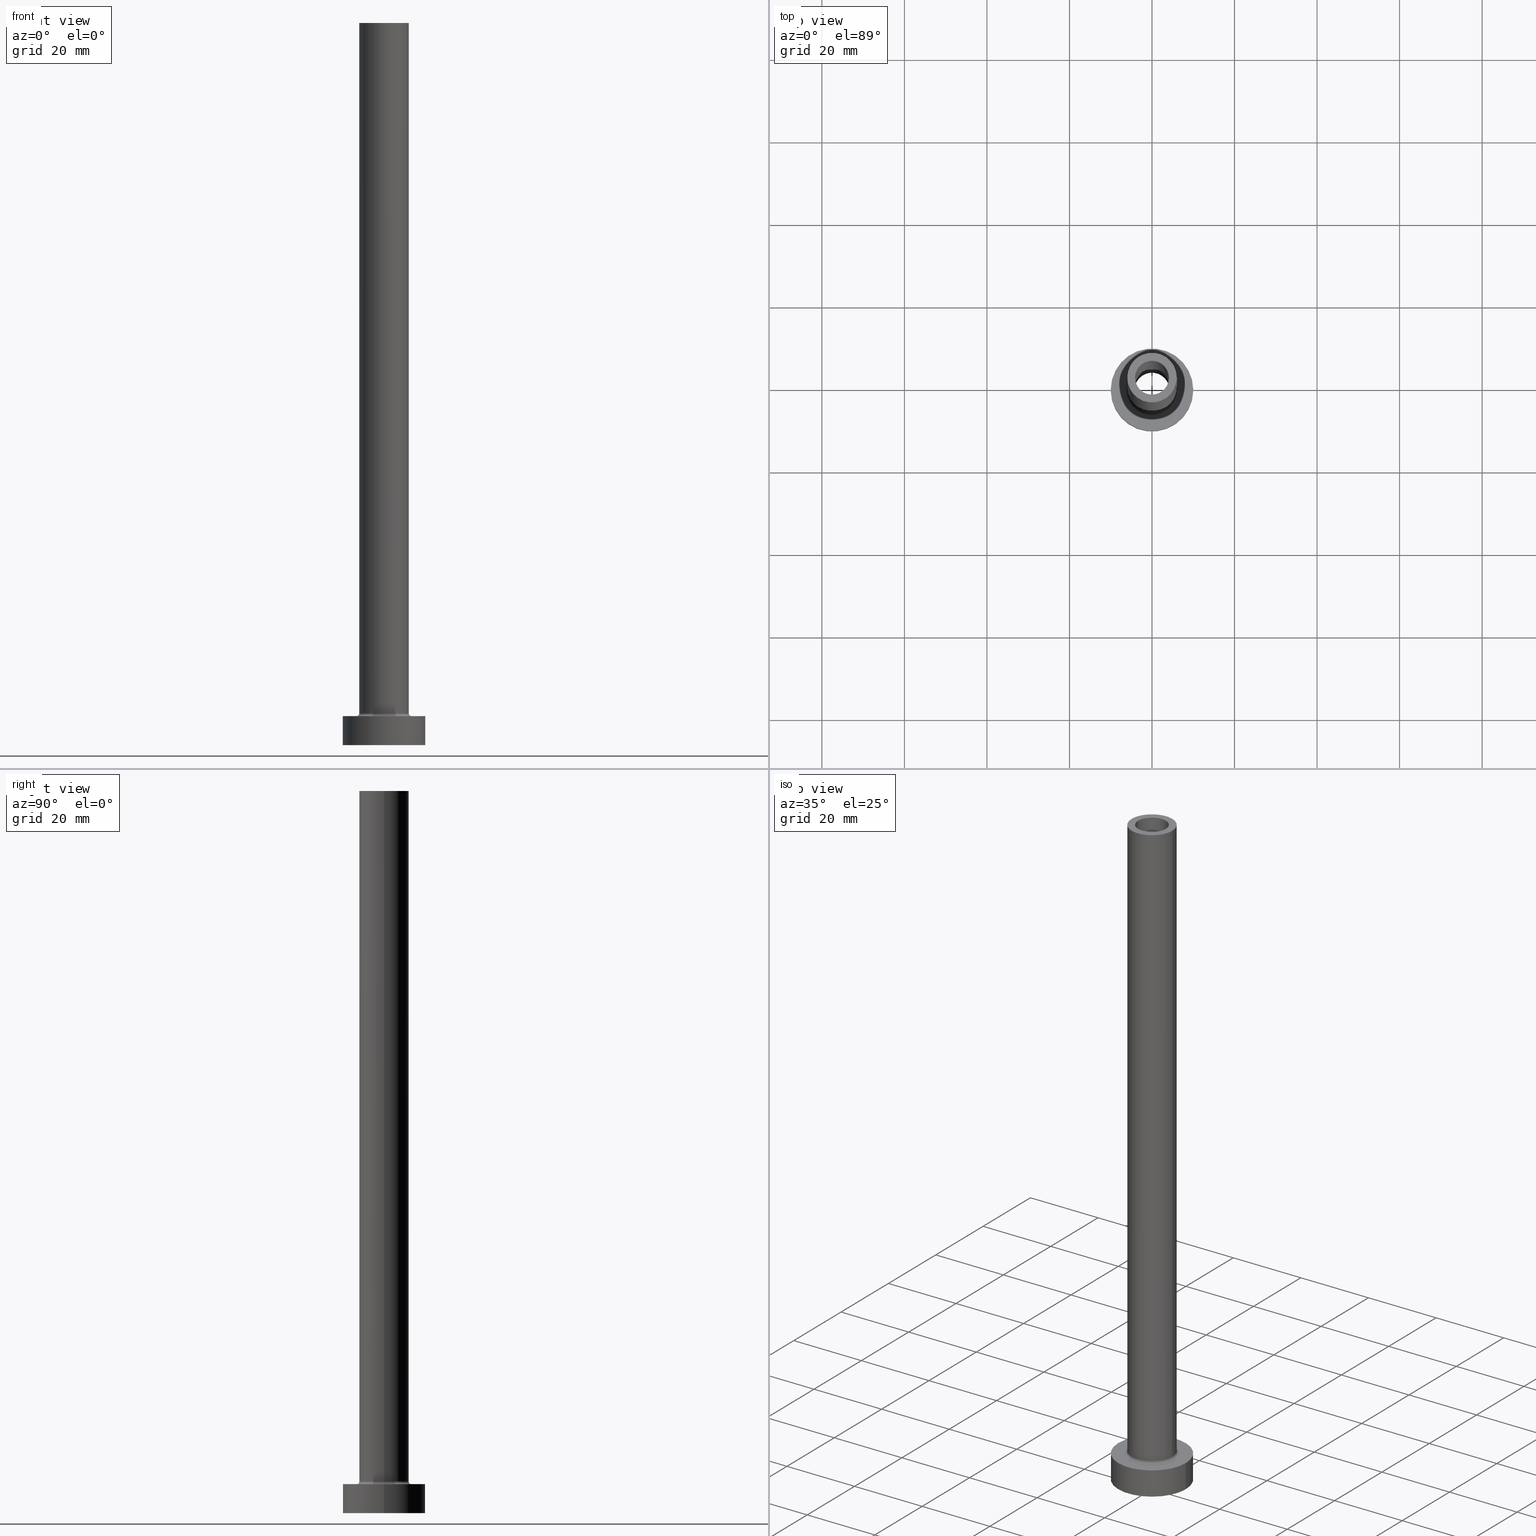
[diagram: canonical four-view strip — front | top / right | iso, engineering-drawing reading convention]
A machine part, canonical four-view strip (front | top / right | iso — engineering-drawing reading convention). The complete STEP part file that produces these views, byte-faithful:
ISO-10303-21;
HEADER;
FILE_DESCRIPTION (( 'STEP AP203' ),
    '1' );
FILE_NAME ('2c22.STEP',
    '2023-02-13T07:41:09',
    ( '' ),
    ( '' ),
    'SwSTEP 2.0',
    'SolidWorks 2019',
    '' );
FILE_SCHEMA (( 'CONFIG_CONTROL_DESIGN' ));
ENDSEC;

DATA;
#1 = VERTEX_POINT ( 'NONE', #206 ) ;
#2 = VERTEX_POINT ( 'NONE', #283 ) ;
#3 = CIRCLE ( 'NONE', #172, 4.099999999999999645 ) ;
#4 = VERTEX_POINT ( 'NONE', #258 ) ;
#5 = ORIENTED_EDGE ( 'NONE', *, *, #194, .F. ) ;
#6 = ADVANCED_FACE ( 'NONE', ( #435 ), #281, .T. ) ;
#7 = PRODUCT_RELATED_PRODUCT_CATEGORY ( 'detail', '', ( #79 ) ) ;
#8 = DIRECTION ( 'NONE',  ( 1.000000000000000000, 0.000000000000000000, 0.000000000000000000 ) ) ;
#9 = VECTOR ( 'NONE', #100, 1000.000000000000000 ) ;
#10 = FACE_BOUND ( 'NONE', #198, .T. ) ;
#11 = PERSON_AND_ORGANIZATION_ROLE ( 'design_supplier' ) ;
#12 = DIRECTION ( 'NONE',  ( 1.000000000000000000, 0.000000000000000000, 0.000000000000000000 ) ) ;
#13 = ADVANCED_FACE ( 'NONE', ( #10, #401 ), #180, .T. ) ;
#14 = CARTESIAN_POINT ( 'NONE',  ( 4.250000000000000000, 5.204748896376250699E-16, 130.0000000000000000 ) ) ;
#15 = CARTESIAN_POINT ( 'NONE',  ( 0.000000000000000000, 0.000000000000000000, 7.700000000000012612 ) ) ;
#16 = CIRCLE ( 'NONE', #165, 10.00000000000000000 ) ;
#17 = DATE_AND_TIME ( #363, #238 ) ;
#18 = DIRECTION ( 'NONE',  ( 1.000000000000000000, 0.000000000000000000, 0.000000000000000000 ) ) ;
#19 = CARTESIAN_POINT ( 'NONE',  ( -4.099999999999999645, 0.000000000000000000, 175.0000000000000284 ) ) ;
#20 = CIRCLE ( 'NONE', #39, 0.7000000000000000666 ) ;
#21 = DIRECTION ( 'NONE',  ( -0.000000000000000000, -0.000000000000000000, -1.000000000000000000 ) ) ;
#22 = CIRCLE ( 'NONE', #387, 4.099999999999999645 ) ;
#23 = CC_DESIGN_PERSON_AND_ORGANIZATION_ASSIGNMENT ( #176, #11, ( #94 ) ) ;
#24 = APPROVAL_PERSON_ORGANIZATION ( #32, #124, #236 ) ;
#25 = PERSON_AND_ORGANIZATION ( #232, #211 ) ;
#26 = APPLICATION_CONTEXT ( 'configuration controlled 3d designs of mechanical parts and assemblies' ) ;
#27 = FACE_OUTER_BOUND ( 'NONE', #306, .T. ) ;
#28 = ADVANCED_FACE ( 'NONE', ( #212 ), #50, .F. ) ;
#29 = APPROVAL_DATE_TIME ( #191, #249 ) ;
#30 = ORIENTED_EDGE ( 'NONE', *, *, #277, .F. ) ;
#31 = EDGE_CURVE ( 'NONE', #162, #1, #357, .T. ) ;
#32 = PERSON_AND_ORGANIZATION ( #232, #211 ) ;
#33 = ORIENTED_EDGE ( 'NONE', *, *, #188, .T. ) ;
#34 = ORIENTED_EDGE ( 'NONE', *, *, #456, .F. ) ;
#35 = ORIENTED_EDGE ( 'NONE', *, *, #31, .T. ) ;
#36 = CARTESIAN_POINT ( 'NONE',  ( -4.250000000000000000, 0.000000000000000000, 142.0208152801712913 ) ) ;
#37 = ORIENTED_EDGE ( 'NONE', *, *, #234, .T. ) ;
#38 = EDGE_LOOP ( 'NONE', ( #63, #374, #346, #98 ) ) ;
#39 = AXIS2_PLACEMENT_3D ( 'NONE', #226, #372, #219 ) ;
#40 = EDGE_LOOP ( 'NONE', ( #131, #461 ) ) ;
#41 = CARTESIAN_POINT ( 'NONE',  ( 0.000000000000000000, 0.000000000000000000, 0.000000000000000000 ) ) ;
#42 = CYLINDRICAL_SURFACE ( 'NONE', #207, 4.099999999999999645 ) ;
#43 = CARTESIAN_POINT ( 'NONE',  ( 0.000000000000000000, 0.000000000000000000, 7.000000000000000000 ) ) ;
#44 = ADVANCED_FACE ( 'NONE', ( #364 ), #149, .F. ) ;
#45 = CARTESIAN_POINT ( 'NONE',  ( 0.000000000000000000, 0.000000000000000000, 175.0000000000000284 ) ) ;
#46 = VECTOR ( 'NONE', #21, 1000.000000000000000 ) ;
#47 = CARTESIAN_POINT ( 'NONE',  ( 6.000000000000000888, 7.347880794884119736E-16, 175.0000000000000284 ) ) ;
#48 = VECTOR ( 'NONE', #78, 1000.000000000000000 ) ;
#49 = LINE ( 'NONE', #316, #115 ) ;
#50 = TOROIDAL_SURFACE ( 'NONE', #220, 6.700000000000001066, 0.6999999999999999556 ) ;
#51 = CARTESIAN_POINT ( 'NONE',  ( -6.000000000000000888, 0.000000000000000000, 175.0000000000000284 ) ) ;
#52 = AXIS2_PLACEMENT_3D ( 'NONE', #330, #368, #126 ) ;
#53 = CIRCLE ( 'NONE', #130, 4.099999999999999645 ) ;
#54 = FACE_BOUND ( 'NONE', #169, .T. ) ;
#55 = COORDINATED_UNIVERSAL_TIME_OFFSET ( 1, 0, .AHEAD. ) ;
#56 = EDGE_CURVE ( 'NONE', #196, #382, #49, .T. ) ;
#57 = LINE ( 'NONE', #192, #352 ) ;
#58 = LINE ( 'NONE', #36, #9 ) ;
#59 = EDGE_CURVE ( 'NONE', #2, #68, #157, .T. ) ;
#60 = PERSON_AND_ORGANIZATION ( #232, #211 ) ;
#61 = ORIENTED_EDGE ( 'NONE', *, *, #141, .T. ) ;
#62 = AXIS2_PLACEMENT_3D ( 'NONE', #359, #118, #393 ) ;
#63 = ORIENTED_EDGE ( 'NONE', *, *, #384, .F. ) ;
#64 = EDGE_LOOP ( 'NONE', ( #173, #422, #239, #34 ) ) ;
#65 = ORIENTED_EDGE ( 'NONE', *, *, #194, .T. ) ;
#66 = VERTEX_POINT ( 'NONE', #216 ) ;
#67 = AXIS2_PLACEMENT_3D ( 'NONE', #427, #114, #8 ) ;
#68 = VERTEX_POINT ( 'NONE', #120 ) ;
#69 = EDGE_CURVE ( 'NONE', #68, #2, #319, .T. ) ;
#70 = CC_DESIGN_PERSON_AND_ORGANIZATION_ASSIGNMENT ( #356, #185, ( #94 ) ) ;
#71 = EDGE_LOOP ( 'NONE', ( #272, #135, #417, #33 ) ) ;
#72 = DIRECTION ( 'NONE',  ( 1.000000000000000000, 0.000000000000000000, 0.000000000000000000 ) ) ;
#73 = ORIENTED_EDGE ( 'NONE', *, *, #188, .F. ) ;
#74 = DIRECTION ( 'NONE',  ( 0.000000000000000000, 0.000000000000000000, 1.000000000000000000 ) ) ;
#75 = AXIS2_PLACEMENT_3D ( 'NONE', #139, #378, #288 ) ;
#76 = DIRECTION ( 'NONE',  ( 1.000000000000000000, 0.000000000000000000, 0.000000000000000000 ) ) ;
#77 = EDGE_CURVE ( 'NONE', #196, #274, #443, .T. ) ;
#78 = DIRECTION ( 'NONE',  ( -0.000000000000000000, -0.000000000000000000, -1.000000000000000000 ) ) ;
#79 = PRODUCT ( '2c22', '2c22', '', ( #347 ) ) ;
#80 = DIRECTION ( 'NONE',  ( -1.000000000000000000, 0.000000000000000000, 0.000000000000000000 ) ) ;
#81 = CARTESIAN_POINT ( 'NONE',  ( 0.000000000000000000, 0.000000000000000000, 7.700000000000012612 ) ) ;
#82 = DIRECTION ( 'NONE',  ( 0.000000000000000000, 0.000000000000000000, 1.000000000000000000 ) ) ;
#83 = DIRECTION ( 'NONE',  ( 0.000000000000000000, 0.000000000000000000, 1.000000000000000000 ) ) ;
#84 = COORDINATED_UNIVERSAL_TIME_OFFSET ( 1, 0, .AHEAD. ) ;
#85 = DIRECTION ( 'NONE',  ( -1.000000000000000000, 0.000000000000000000, 0.000000000000000000 ) ) ;
#86 = EDGE_CURVE ( 'NONE', #453, #230, #133, .T. ) ;
#87 = CARTESIAN_POINT ( 'NONE',  ( 0.000000000000000000, 0.000000000000000000, 175.0000000000000284 ) ) ;
#88 = CIRCLE ( 'NONE', #287, 6.000000000000000888 ) ;
#89 = CYLINDRICAL_SURFACE ( 'NONE', #52, 4.250000000000000000 ) ;
#90 = FACE_OUTER_BOUND ( 'NONE', #40, .T. ) ;
#91 = PERSON_AND_ORGANIZATION ( #232, #211 ) ;
#92 = ADVANCED_FACE ( 'NONE', ( #113 ), #42, .F. ) ;
#93 = CARTESIAN_POINT ( 'NONE',  ( -6.000000000000000888, 0.000000000000000000, 175.0000000000000284 ) ) ;
#94 = PRODUCT_DEFINITION_FORMATION_WITH_SPECIFIED_SOURCE ( 'LIBOVOLN�', '', #79, .NOT_KNOWN. ) ;
#95 = CYLINDRICAL_SURFACE ( 'NONE', #205, 4.250000000000000000 ) ;
#96 = CARTESIAN_POINT ( 'NONE',  ( 0.000000000000000000, 0.000000000000000000, 130.0000000000000000 ) ) ;
#97 = ORIENTED_EDGE ( 'NONE', *, *, #302, .F. ) ;
#98 = ORIENTED_EDGE ( 'NONE', *, *, #59, .F. ) ;
#99 = ORIENTED_EDGE ( 'NONE', *, *, #234, .F. ) ;
#100 = DIRECTION ( 'NONE',  ( 0.000000000000000000, 0.000000000000000000, -1.000000000000000000 ) ) ;
#101 = EDGE_LOOP ( 'NONE', ( #137, #5 ) ) ;
#102 = EDGE_LOOP ( 'NONE', ( #312, #344, #428, #383 ) ) ;
#103 = EDGE_CURVE ( 'NONE', #109, #386, #355, .T. ) ;
#104 = PERSON_AND_ORGANIZATION ( #232, #211 ) ;
#105 = APPROVAL ( #324, 'NEUR�EN�' ) ;
#106 = ORIENTED_EDGE ( 'NONE', *, *, #56, .F. ) ;
#107 = CARTESIAN_POINT ( 'NONE',  ( -4.099999999999999645, 0.000000000000000000, 175.0000000000000284 ) ) ;
#108 = AXIS2_PLACEMENT_3D ( 'NONE', #43, #111, #323 ) ;
#109 = VERTEX_POINT ( 'NONE', #47 ) ;
#110 = DIRECTION ( 'NONE',  ( -1.000000000000000000, 0.000000000000000000, 0.000000000000000000 ) ) ;
#111 = DIRECTION ( 'NONE',  ( -0.000000000000000000, -0.000000000000000000, -1.000000000000000000 ) ) ;
#112 = CIRCLE ( 'NONE', #67, 10.00000000000000000 ) ;
#113 = FACE_OUTER_BOUND ( 'NONE', #171, .T. ) ;
#114 = DIRECTION ( 'NONE',  ( 0.000000000000000000, 0.000000000000000000, 1.000000000000000000 ) ) ;
#115 = VECTOR ( 'NONE', #145, 1000.000000000000000 ) ;
#116 = COORDINATED_UNIVERSAL_TIME_OFFSET ( 1, 0, .AHEAD. ) ;
#117 = ORIENTED_EDGE ( 'NONE', *, *, #151, .T. ) ;
#118 = DIRECTION ( 'NONE',  ( 0.000000000000000000, 0.000000000000000000, 1.000000000000000000 ) ) ;
#119 = EDGE_CURVE ( 'NONE', #166, #390, #16, .T. ) ;
#120 = CARTESIAN_POINT ( 'NONE',  ( 6.700000000000001066, 0.000000000000000000, 7.000000000000006217 ) ) ;
#121 = CARTESIAN_POINT ( 'NONE',  ( 0.000000000000000000, 0.000000000000000000, 142.0208152801712913 ) ) ;
#122 = DATE_TIME_ROLE ( 'classification_date' ) ;
#123 = LINE ( 'NONE', #93, #46 ) ;
#124 = APPROVAL ( #418, 'NEUR�EN�' ) ;
#125 = CARTESIAN_POINT ( 'NONE',  ( 0.000000000000000000, 0.000000000000000000, 130.0000000000000000 ) ) ;
#126 = DIRECTION ( 'NONE',  ( -1.000000000000000000, 0.000000000000000000, 0.000000000000000000 ) ) ;
#127 = CARTESIAN_POINT ( 'NONE',  ( 0.000000000000000000, 0.000000000000000000, 175.0000000000000284 ) ) ;
#128 = ORIENTED_EDGE ( 'NONE', *, *, #277, .T. ) ;
#129 = DIRECTION ( 'NONE',  ( 0.000000000000000000, 0.000000000000000000, 1.000000000000000000 ) ) ;
#130 = AXIS2_PLACEMENT_3D ( 'NONE', #400, #83, #217 ) ;
#131 = ORIENTED_EDGE ( 'NONE', *, *, #399, .T. ) ;
#132 = EDGE_LOOP ( 'NONE', ( #117, #161, #30, #351 ) ) ;
#133 = CIRCLE ( 'NONE', #334, 6.000000000000000888 ) ;
#134 = EDGE_CURVE ( 'NONE', #388, #1, #22, .T. ) ;
#135 = ORIENTED_EDGE ( 'NONE', *, *, #348, .F. ) ;
#136 = UNCERTAINTY_MEASURE_WITH_UNIT (LENGTH_MEASURE( 1.000000000000000082E-05 ), #450, 'distance_accuracy_value', 'NONE');
#137 = ORIENTED_EDGE ( 'NONE', *, *, #141, .F. ) ;
#138 = ORIENTED_EDGE ( 'NONE', *, *, #134, .F. ) ;
#139 = CARTESIAN_POINT ( 'NONE',  ( 0.000000000000000000, 0.000000000000000000, 0.000000000000000000 ) ) ;
#140 = EDGE_LOOP ( 'NONE', ( #379, #342, #65, #246 ) ) ;
#141 = EDGE_CURVE ( 'NONE', #203, #382, #457, .T. ) ;
#142 = AXIS2_PLACEMENT_3D ( 'NONE', #127, #345, #197 ) ;
#143 = DIRECTION ( 'NONE',  ( 1.000000000000000000, 0.000000000000000000, 0.000000000000000000 ) ) ;
#144 = VECTOR ( 'NONE', #177, 1000.000000000000000 ) ;
#145 = DIRECTION ( 'NONE',  ( 0.000000000000000000, 0.000000000000000000, -1.000000000000000000 ) ) ;
#146 = SECURITY_CLASSIFICATION_LEVEL ( 'unclassified' ) ;
#147 = CARTESIAN_POINT ( 'NONE',  ( 0.000000000000000000, 0.000000000000000000, 7.700000000000012612 ) ) ;
#148 = CARTESIAN_POINT ( 'NONE',  ( 6.000000000000000888, 7.347880794884119736E-16, 7.700000000000012612 ) ) ;
#149 = CYLINDRICAL_SURFACE ( 'NONE', #310, 4.099999999999999645 ) ;
#150 = CARTESIAN_POINT ( 'NONE',  ( 0.000000000000000000, 0.000000000000000000, 130.0000000000000000 ) ) ;
#151 = EDGE_CURVE ( 'NONE', #162, #66, #53, .T. ) ;
#152 = CARTESIAN_POINT ( 'NONE',  ( 0.000000000000000000, 0.000000000000000000, 7.000000000000000000 ) ) ;
#153 = FACE_OUTER_BOUND ( 'NONE', #140, .T. ) ;
#154 = EDGE_CURVE ( 'NONE', #4, #166, #178, .T. ) ;
#155 = CARTESIAN_POINT ( 'NONE',  ( 0.000000000000000000, 0.000000000000000000, 7.700000000000012612 ) ) ;
#156 = CIRCLE ( 'NONE', #142, 4.099999999999999645 ) ;
#157 = CIRCLE ( 'NONE', #404, 6.700000000000001066 ) ;
#158 = SHAPE_DEFINITION_REPRESENTATION ( #385, #429 ) ;
#159 = CYLINDRICAL_SURFACE ( 'NONE', #227, 6.000000000000000888 ) ;
#160 = ADVANCED_FACE ( 'NONE', ( #326, #322 ), #204, .F. ) ;
#161 = ORIENTED_EDGE ( 'NONE', *, *, #367, .T. ) ;
#162 = VERTEX_POINT ( 'NONE', #107 ) ;
#163 = EDGE_LOOP ( 'NONE', ( #99, #308, #313, #311 ) ) ;
#164 = FACE_OUTER_BOUND ( 'NONE', #102, .T. ) ;
#165 = AXIS2_PLACEMENT_3D ( 'NONE', #184, #325, #18 ) ;
#166 = VERTEX_POINT ( 'NONE', #174 ) ;
#167 = CARTESIAN_POINT ( 'NONE',  ( 0.000000000000000000, 0.000000000000000000, 0.000000000000000000 ) ) ;
#168 = CC_DESIGN_APPROVAL ( #105, ( #94 ) ) ;
#169 = EDGE_LOOP ( 'NONE', ( #243, #304 ) ) ;
#170 = LOCAL_TIME ( 8, 41, 9.000000000000000000, #55 ) ;
#171 = EDGE_LOOP ( 'NONE', ( #424, #210, #35, #138 ) ) ;
#172 = AXIS2_PLACEMENT_3D ( 'NONE', #125, #264, #294 ) ;
#173 = ORIENTED_EDGE ( 'NONE', *, *, #86, .F. ) ;
#174 = CARTESIAN_POINT ( 'NONE',  ( 10.00000000000000000, 1.224646799147353256E-15, 0.000000000000000000 ) ) ;
#175 = EDGE_LOOP ( 'NONE', ( #73, #458 ) ) ;
#176 = PERSON_AND_ORGANIZATION ( #232, #211 ) ;
#177 = DIRECTION ( 'NONE',  ( 0.000000000000000000, 0.000000000000000000, -1.000000000000000000 ) ) ;
#178 = LINE ( 'NONE', #362, #307 ) ;
#179 = AXIS2_PLACEMENT_3D ( 'NONE', #155, #262, #444 ) ;
#180 = PLANE ( 'NONE',  #62 ) ;
#181 = FACE_OUTER_BOUND ( 'NONE', #163, .T. ) ;
#182 = CIRCLE ( 'NONE', #447, 4.250000000000000000 ) ;
#183 = PERSON_AND_ORGANIZATION_ROLE ( 'creator' ) ;
#184 = CARTESIAN_POINT ( 'NONE',  ( 0.000000000000000000, 0.000000000000000000, 0.000000000000000000 ) ) ;
#185 = PERSON_AND_ORGANIZATION_ROLE ( 'creator' ) ;
#186 = EDGE_LOOP ( 'NONE', ( #128, #349 ) ) ;
#187 = CARTESIAN_POINT ( 'NONE',  ( 4.099999999999999645, 5.021051876504147385E-16, 130.0000000000000000 ) ) ;
#188 = EDGE_CURVE ( 'NONE', #390, #166, #112, .T. ) ;
#189 = AXIS2_PLACEMENT_3D ( 'NONE', #366, #193, #337 ) ;
#190 = FACE_OUTER_BOUND ( 'NONE', #38, .T. ) ;
#191 = DATE_AND_TIME ( #369, #305 ) ;
#192 = CARTESIAN_POINT ( 'NONE',  ( 4.099999999999999645, 5.021051876504147385E-16, 175.0000000000000284 ) ) ;
#193 = DIRECTION ( 'NONE',  ( 0.000000000000000000, 0.000000000000000000, 1.000000000000000000 ) ) ;
#194 = EDGE_CURVE ( 'NONE', #382, #203, #182, .T. ) ;
#195 = CC_DESIGN_PERSON_AND_ORGANIZATION_ASSIGNMENT ( #25, #338, ( #437 ) ) ;
#196 = VERTEX_POINT ( 'NONE', #14 ) ;
#197 = DIRECTION ( 'NONE',  ( 1.000000000000000000, 0.000000000000000000, 0.000000000000000000 ) ) ;
#198 = EDGE_LOOP ( 'NONE', ( #389, #350 ) ) ;
#199 = PRODUCT_DEFINITION ( 'NEZN�M�', '', #94, #460 ) ;
#200 = CALENDAR_DATE ( 2023, 13, 2 ) ;
#201 = ORIENTED_EDGE ( 'NONE', *, *, #415, .F. ) ;
#202 = DIRECTION ( 'NONE',  ( 0.000000000000000000, 0.000000000000000000, 1.000000000000000000 ) ) ;
#203 = VERTEX_POINT ( 'NONE', #280 ) ;
#204 = PLANE ( 'NONE',  #263 ) ;
#205 = AXIS2_PLACEMENT_3D ( 'NONE', #121, #407, #221 ) ;
#206 = CARTESIAN_POINT ( 'NONE',  ( -4.099999999999999645, 0.000000000000000000, 130.0000000000000000 ) ) ;
#207 = AXIS2_PLACEMENT_3D ( 'NONE', #398, #253, #80 ) ;
#208 = LINE ( 'NONE', #394, #48 ) ;
#209 = APPROVAL_DATE_TIME ( #17, #105 ) ;
#210 = ORIENTED_EDGE ( 'NONE', *, *, #449, .T. ) ;
#211 = ORGANIZATION ( 'NEUR�EN�', 'NEUR�EN�', '' ) ;
#212 = FACE_OUTER_BOUND ( 'NONE', #64, .T. ) ;
#213 = ADVANCED_FACE ( 'NONE', ( #181 ), #252, .T. ) ;
#214 = DIRECTION ( 'NONE',  ( 0.000000000000000000, 0.000000000000000000, 1.000000000000000000 ) ) ;
#215 = DATE_TIME_ROLE ( 'creation_date' ) ;
#216 = CARTESIAN_POINT ( 'NONE',  ( 4.099999999999999645, 5.021051876504147385E-16, 175.0000000000000284 ) ) ;
#217 = DIRECTION ( 'NONE',  ( 1.000000000000000000, 0.000000000000000000, 0.000000000000000000 ) ) ;
#218 = DIRECTION ( 'NONE',  ( 0.000000000000000000, 0.000000000000000000, 1.000000000000000000 ) ) ;
#219 = DIRECTION ( 'NONE',  ( -1.000000000000000000, 1.224646799147353454E-16, 0.000000000000000000 ) ) ;
#220 = AXIS2_PLACEMENT_3D ( 'NONE', #15, #218, #76 ) ;
#221 = DIRECTION ( 'NONE',  ( -1.000000000000000000, 0.000000000000000000, 0.000000000000000000 ) ) ;
#222 = APPROVAL_ROLE ( '' ) ;
#223 = CARTESIAN_POINT ( 'NONE',  ( 0.000000000000000000, 0.000000000000000000, 7.000000000000000000 ) ) ;
#224 = COORDINATED_UNIVERSAL_TIME_OFFSET ( 1, 0, .AHEAD. ) ;
#225 = EDGE_CURVE ( 'NONE', #109, #230, #208, .T. ) ;
#226 = CARTESIAN_POINT ( 'NONE',  ( -6.700000000000001066, 8.205133554287267548E-16, 7.700000000000012612 ) ) ;
#227 = AXIS2_PLACEMENT_3D ( 'NONE', #87, #365, #296 ) ;
#228 = APPROVAL_PERSON_ORGANIZATION ( #91, #249, #222 ) ;
#229 = CARTESIAN_POINT ( 'NONE',  ( 6.700000000000001066, 0.000000000000000000, 7.700000000000012612 ) ) ;
#230 = VERTEX_POINT ( 'NONE', #148 ) ;
#231 = DIRECTION ( 'NONE',  ( 0.000000000000000000, 0.000000000000000000, 1.000000000000000000 ) ) ;
#232 = PERSON ( 'NEUR�EN�', 'NEUR�EN�', 'NEUR�EN�', ('NEUR�EN�'), ('NEUR�EN�'), ('NEUR�EN�') ) ;
#233 = MANIFOLD_SOLID_BREP ( 'Odebrat vysunut�m4', #413 ) ;
#234 = EDGE_CURVE ( 'NONE', #4, #455, #416, .T. ) ;
#235 = ORIENTED_EDGE ( 'NONE', *, *, #436, .T. ) ;
#236 = APPROVAL_ROLE ( '' ) ;
#237 = CC_DESIGN_APPROVAL ( #124, ( #199 ) ) ;
#238 = LOCAL_TIME ( 8, 41, 9.000000000000000000, #84 ) ;
#239 = ORIENTED_EDGE ( 'NONE', *, *, #69, .F. ) ;
#240 = EDGE_LOOP ( 'NONE', ( #106, #425, #235, #61 ) ) ;
#241 = DIRECTION ( 'NONE',  ( 1.000000000000000000, 0.000000000000000000, 0.000000000000000000 ) ) ;
#242 = CIRCLE ( 'NONE', #257, 6.000000000000000888 ) ;
#243 = ORIENTED_EDGE ( 'NONE', *, *, #151, .F. ) ;
#244 = ORIENTED_EDGE ( 'NONE', *, *, #77, .F. ) ;
#245 = APPROVAL_ROLE ( '' ) ;
#246 = ORIENTED_EDGE ( 'NONE', *, *, #436, .F. ) ;
#247 = CARTESIAN_POINT ( 'NONE',  ( -10.00000000000000000, 0.000000000000000000, 7.000000000000000000 ) ) ;
#248 = EDGE_CURVE ( 'NONE', #230, #453, #242, .T. ) ;
#249 = APPROVAL ( #300, 'NEUR�EN�' ) ;
#250 = ORIENTED_EDGE ( 'NONE', *, *, #248, .T. ) ;
#251 = DIRECTION ( 'NONE',  ( -0.000000000000000000, -0.000000000000000000, -1.000000000000000000 ) ) ;
#252 = CYLINDRICAL_SURFACE ( 'NONE', #297, 10.00000000000000000 ) ;
#253 = DIRECTION ( 'NONE',  ( 0.000000000000000000, 0.000000000000000000, -1.000000000000000000 ) ) ;
#254 = ADVANCED_FACE ( 'NONE', ( #54, #90 ), #293, .T. ) ;
#255 = DIRECTION ( 'NONE',  ( 0.000000000000000000, 0.000000000000000000, 1.000000000000000000 ) ) ;
#256 = DIRECTION ( 'NONE',  ( 0.000000000000000000, 0.000000000000000000, 1.000000000000000000 ) ) ;
#257 = AXIS2_PLACEMENT_3D ( 'NONE', #81, #214, #360 ) ;
#258 = CARTESIAN_POINT ( 'NONE',  ( 10.00000000000000000, 1.224646799147353256E-15, 7.000000000000000000 ) ) ;
#259 = CARTESIAN_POINT ( 'NONE',  ( 0.000000000000000000, 0.000000000000000000, 130.0000000000000000 ) ) ;
#260 = AXIS2_PLACEMENT_3D ( 'NONE', #152, #251, #433 ) ;
#261 = DIRECTION ( 'NONE',  ( 0.000000000000000000, 0.000000000000000000, 1.000000000000000000 ) ) ;
#262 = DIRECTION ( 'NONE',  ( 0.000000000000000000, 0.000000000000000000, 1.000000000000000000 ) ) ;
#263 = AXIS2_PLACEMENT_3D ( 'NONE', #41, #74, #432 ) ;
#264 = DIRECTION ( 'NONE',  ( 0.000000000000000000, 0.000000000000000000, 1.000000000000000000 ) ) ;
#265 =( NAMED_UNIT ( * ) SI_UNIT ( $, .STERADIAN. ) SOLID_ANGLE_UNIT ( ) );
#266 = PLANE ( 'NONE',  #189 ) ;
#267 =( NAMED_UNIT ( * ) PLANE_ANGLE_UNIT ( ) SI_UNIT ( $, .RADIAN. ) );
#268 = ADVANCED_FACE ( 'NONE', ( #445, #333 ), #266, .F. ) ;
#269 = ORIENTED_EDGE ( 'NONE', *, *, #225, .T. ) ;
#270 = DIRECTION ( 'NONE',  ( 0.000000000000000000, 0.000000000000000000, -1.000000000000000000 ) ) ;
#271 = CARTESIAN_POINT ( 'NONE',  ( 0.000000000000000000, 0.000000000000000000, 175.0000000000000284 ) ) ;
#272 = ORIENTED_EDGE ( 'NONE', *, *, #154, .F. ) ;
#273 = DIRECTION ( 'NONE',  ( 1.000000000000000000, 0.000000000000000000, 0.000000000000000000 ) ) ;
#274 = VERTEX_POINT ( 'NONE', #412 ) ;
#275 = DATE_AND_TIME ( #397, #371 ) ;
#276 = EDGE_LOOP ( 'NONE', ( #201, #244 ) ) ;
#277 = EDGE_CURVE ( 'NONE', #1, #388, #3, .T. ) ;
#278 = DIRECTION ( 'NONE',  ( -0.000000000000000000, -0.000000000000000000, -1.000000000000000000 ) ) ;
#279 = ORIENTED_EDGE ( 'NONE', *, *, #103, .F. ) ;
#280 = CARTESIAN_POINT ( 'NONE',  ( -4.250000000000000000, 0.000000000000000000, 0.000000000000000000 ) ) ;
#281 = CYLINDRICAL_SURFACE ( 'NONE', #108, 10.00000000000000000 ) ;
#282 = CC_DESIGN_PERSON_AND_ORGANIZATION_ASSIGNMENT ( #60, #336, ( #79 ) ) ;
#283 = CARTESIAN_POINT ( 'NONE',  ( -6.700000000000001066, 8.205133554287267548E-16, 7.000000000000006217 ) ) ;
#284 = AXIS2_PLACEMENT_3D ( 'NONE', #45, #82, #361 ) ;
#285 = DIRECTION ( 'NONE',  ( -0.000000000000000000, -0.000000000000000000, -1.000000000000000000 ) ) ;
#286 = DIRECTION ( 'NONE',  ( 0.000000000000000000, 0.000000000000000000, 1.000000000000000000 ) ) ;
#287 = AXIS2_PLACEMENT_3D ( 'NONE', #271, #202, #72 ) ;
#288 = DIRECTION ( 'NONE',  ( 1.000000000000000000, 0.000000000000000000, 0.000000000000000000 ) ) ;
#289 = DIRECTION ( 'NONE',  ( 0.000000000000000000, 0.000000000000000000, 1.000000000000000000 ) ) ;
#290 = CIRCLE ( 'NONE', #391, 10.00000000000000000 ) ;
#291 = ORIENTED_EDGE ( 'NONE', *, *, #348, .T. ) ;
#292 = ADVANCED_FACE ( 'NONE', ( #190 ), #454, .F. ) ;
#293 = PLANE ( 'NONE',  #321 ) ;
#294 = DIRECTION ( 'NONE',  ( 1.000000000000000000, 0.000000000000000000, 0.000000000000000000 ) ) ;
#295 = AXIS2_PLACEMENT_3D ( 'NONE', #259, #286, #12 ) ;
#296 = DIRECTION ( 'NONE',  ( -1.000000000000000000, 0.000000000000000000, 0.000000000000000000 ) ) ;
#297 = AXIS2_PLACEMENT_3D ( 'NONE', #430, #392, #110 ) ;
#298 = CARTESIAN_POINT ( 'NONE',  ( -10.00000000000000000, 0.000000000000000000, 7.000000000000000000 ) ) ;
#299 = DIRECTION ( 'NONE',  ( 0.000000000000000000, 0.000000000000000000, 1.000000000000000000 ) ) ;
#300 = APPROVAL_STATUS ( 'not_yet_approved' ) ;
#301 = CIRCLE ( 'NONE', #341, 4.250000000000000000 ) ;
#302 = EDGE_CURVE ( 'NONE', #386, #453, #123, .T. ) ;
#303 = CARTESIAN_POINT ( 'NONE',  ( 0.000000000000000000, 0.000000000000000000, 175.0000000000000284 ) ) ;
#304 = ORIENTED_EDGE ( 'NONE', *, *, #449, .F. ) ;
#305 = LOCAL_TIME ( 8, 41, 9.000000000000000000, #224 ) ;
#306 = EDGE_LOOP ( 'NONE', ( #279, #269, #250, #97 ) ) ;
#307 = VECTOR ( 'NONE', #285, 1000.000000000000000 ) ;
#308 = ORIENTED_EDGE ( 'NONE', *, *, #154, .T. ) ;
#309 = EDGE_LOOP ( 'NONE', ( #291, #37 ) ) ;
#310 = AXIS2_PLACEMENT_3D ( 'NONE', #395, #320, #85 ) ;
#311 = ORIENTED_EDGE ( 'NONE', *, *, #406, .F. ) ;
#312 = ORIENTED_EDGE ( 'NONE', *, *, #225, .F. ) ;
#313 = ORIENTED_EDGE ( 'NONE', *, *, #119, .T. ) ;
#314 = APPLICATION_CONTEXT ( 'configuration controlled 3d designs of mechanical parts and assemblies' ) ;
#315 = DIRECTION ( 'NONE',  ( -0.000000000000000000, -0.000000000000000000, -1.000000000000000000 ) ) ;
#316 = CARTESIAN_POINT ( 'NONE',  ( 4.250000000000000000, 5.204748896376250699E-16, 142.0208152801712913 ) ) ;
#317 = CIRCLE ( 'NONE', #403, 0.7000000000000000666 ) ;
#318 = ADVANCED_FACE ( 'NONE', ( #153 ), #89, .F. ) ;
#319 = CIRCLE ( 'NONE', #260, 6.700000000000001066 ) ;
#320 = DIRECTION ( 'NONE',  ( 0.000000000000000000, 0.000000000000000000, -1.000000000000000000 ) ) ;
#321 = AXIS2_PLACEMENT_3D ( 'NONE', #452, #299, #405 ) ;
#322 = FACE_OUTER_BOUND ( 'NONE', #175, .T. ) ;
#323 = DIRECTION ( 'NONE',  ( -1.000000000000000000, 0.000000000000000000, 0.000000000000000000 ) ) ;
#324 = APPROVAL_STATUS ( 'not_yet_approved' ) ;
#325 = DIRECTION ( 'NONE',  ( 0.000000000000000000, 0.000000000000000000, 1.000000000000000000 ) ) ;
#326 = FACE_BOUND ( 'NONE', #101, .T. ) ;
#327 = DIRECTION ( 'NONE',  ( 1.000000000000000000, 0.000000000000000000, 0.000000000000000000 ) ) ;
#328 = CC_DESIGN_DATE_AND_TIME_ASSIGNMENT ( #409, #122, ( #437 ) ) ;
#329 = CARTESIAN_POINT ( 'NONE',  ( -10.00000000000000000, 0.000000000000000000, 0.000000000000000000 ) ) ;
#330 = CARTESIAN_POINT ( 'NONE',  ( 0.000000000000000000, 0.000000000000000000, 142.0208152801712913 ) ) ;
#331 = CC_DESIGN_DATE_AND_TIME_ASSIGNMENT ( #275, #215, ( #199 ) ) ;
#332 = LOCAL_TIME ( 8, 41, 9.000000000000000000, #381 ) ;
#333 = FACE_OUTER_BOUND ( 'NONE', #276, .T. ) ;
#334 = AXIS2_PLACEMENT_3D ( 'NONE', #147, #256, #402 ) ;
#335 = DIRECTION ( 'NONE',  ( 0.000000000000000000, 0.000000000000000000, -1.000000000000000000 ) ) ;
#336 = PERSON_AND_ORGANIZATION_ROLE ( 'design_owner' ) ;
#337 = DIRECTION ( 'NONE',  ( 1.000000000000000000, 0.000000000000000000, -0.000000000000000000 ) ) ;
#338 = PERSON_AND_ORGANIZATION_ROLE ( 'classification_officer' ) ;
#339 = CARTESIAN_POINT ( 'NONE',  ( -6.000000000000000888, 0.000000000000000000, 7.700000000000012612 ) ) ;
#340 = AXIS2_PLACEMENT_3D ( 'NONE', #303, #414, #376 ) ;
#341 = AXIS2_PLACEMENT_3D ( 'NONE', #96, #129, #241 ) ;
#342 = ORIENTED_EDGE ( 'NONE', *, *, #56, .T. ) ;
#343 = APPLICATION_PROTOCOL_DEFINITION ( 'international standard', 'config_control_design', 1994, #314 ) ;
#344 = ORIENTED_EDGE ( 'NONE', *, *, #399, .F. ) ;
#345 = DIRECTION ( 'NONE',  ( 0.000000000000000000, 0.000000000000000000, 1.000000000000000000 ) ) ;
#346 = ORIENTED_EDGE ( 'NONE', *, *, #456, .T. ) ;
#347 = MECHANICAL_CONTEXT ( 'NONE', #26, 'mechanical' ) ;
#348 = EDGE_CURVE ( 'NONE', #455, #4, #290, .T. ) ;
#349 = ORIENTED_EDGE ( 'NONE', *, *, #134, .T. ) ;
#350 = ORIENTED_EDGE ( 'NONE', *, *, #59, .T. ) ;
#351 = ORIENTED_EDGE ( 'NONE', *, *, #31, .F. ) ;
#352 = VECTOR ( 'NONE', #335, 1000.000000000000000 ) ;
#353 = CARTESIAN_POINT ( 'NONE',  ( 0.000000000000000000, 0.000000000000000000, 0.000000000000000000 ) ) ;
#354 = ADVANCED_FACE ( 'NONE', ( #442 ), #95, .F. ) ;
#355 = CIRCLE ( 'NONE', #284, 6.000000000000000888 ) ;
#356 = PERSON_AND_ORGANIZATION ( #232, #211 ) ;
#357 = LINE ( 'NONE', #19, #144 ) ;
#358 = PERSON_AND_ORGANIZATION ( #232, #211 ) ;
#359 = CARTESIAN_POINT ( 'NONE',  ( 0.000000000000000000, 0.000000000000000000, 7.000000000000000000 ) ) ;
#360 = DIRECTION ( 'NONE',  ( 1.000000000000000000, 0.000000000000000000, 0.000000000000000000 ) ) ;
#361 = DIRECTION ( 'NONE',  ( 1.000000000000000000, 0.000000000000000000, 0.000000000000000000 ) ) ;
#362 = CARTESIAN_POINT ( 'NONE',  ( 10.00000000000000000, 1.224646799147353256E-15, 7.000000000000000000 ) ) ;
#363 = CALENDAR_DATE ( 2023, 13, 2 ) ;
#364 = FACE_OUTER_BOUND ( 'NONE', #132, .T. ) ;
#365 = DIRECTION ( 'NONE',  ( -0.000000000000000000, -0.000000000000000000, -1.000000000000000000 ) ) ;
#366 = CARTESIAN_POINT ( 'NONE',  ( 0.000000000000000000, 0.000000000000000000, 130.0000000000000000 ) ) ;
#367 = EDGE_CURVE ( 'NONE', #66, #388, #57, .T. ) ;
#368 = DIRECTION ( 'NONE',  ( 0.000000000000000000, 0.000000000000000000, -1.000000000000000000 ) ) ;
#369 = CALENDAR_DATE ( 2023, 13, 2 ) ;
#370 = DIRECTION ( 'NONE',  ( 1.000000000000000000, 0.000000000000000000, 0.000000000000000000 ) ) ;
#371 = LOCAL_TIME ( 8, 41, 9.000000000000000000, #116 ) ;
#372 = DIRECTION ( 'NONE',  ( 1.224646799147353207E-16, 1.000000000000000000, -0.000000000000000000 ) ) ;
#373 = DIRECTION ( 'NONE',  ( 0.000000000000000000, -1.000000000000000000, 0.000000000000000000 ) ) ;
#374 = ORIENTED_EDGE ( 'NONE', *, *, #248, .F. ) ;
#375 = ADVANCED_FACE ( 'NONE', ( #27 ), #159, .T. ) ;
#376 = DIRECTION ( 'NONE',  ( -1.000000000000000000, 0.000000000000000000, 0.000000000000000000 ) ) ;
#377 =( GEOMETRIC_REPRESENTATION_CONTEXT ( 3 ) GLOBAL_UNCERTAINTY_ASSIGNED_CONTEXT ( ( #136 ) ) GLOBAL_UNIT_ASSIGNED_CONTEXT ( ( #450, #267, #265 ) ) REPRESENTATION_CONTEXT ( 'NONE', 'WORKASPACE' ) );
#378 = DIRECTION ( 'NONE',  ( -0.000000000000000000, -0.000000000000000000, -1.000000000000000000 ) ) ;
#379 = ORIENTED_EDGE ( 'NONE', *, *, #415, .T. ) ;
#380 = APPROVAL_PERSON_ORGANIZATION ( #104, #105, #245 ) ;
#381 = COORDINATED_UNIVERSAL_TIME_OFFSET ( 1, 0, .AHEAD. ) ;
#382 = VERTEX_POINT ( 'NONE', #448 ) ;
#383 = ORIENTED_EDGE ( 'NONE', *, *, #86, .T. ) ;
#384 = EDGE_CURVE ( 'NONE', #453, #2, #20, .T. ) ;
#385 = PRODUCT_DEFINITION_SHAPE ( 'NONE', 'NONE',  #199 ) ;
#386 = VERTEX_POINT ( 'NONE', #51 ) ;
#387 = AXIS2_PLACEMENT_3D ( 'NONE', #150, #289, #438 ) ;
#388 = VERTEX_POINT ( 'NONE', #187 ) ;
#389 = ORIENTED_EDGE ( 'NONE', *, *, #69, .T. ) ;
#390 = VERTEX_POINT ( 'NONE', #329 ) ;
#391 = AXIS2_PLACEMENT_3D ( 'NONE', #223, #261, #370 ) ;
#392 = DIRECTION ( 'NONE',  ( -0.000000000000000000, -0.000000000000000000, -1.000000000000000000 ) ) ;
#393 = DIRECTION ( 'NONE',  ( 1.000000000000000000, 0.000000000000000000, -0.000000000000000000 ) ) ;
#394 = CARTESIAN_POINT ( 'NONE',  ( 6.000000000000000888, 7.347880794884119736E-16, 175.0000000000000284 ) ) ;
#395 = CARTESIAN_POINT ( 'NONE',  ( 0.000000000000000000, 0.000000000000000000, 175.0000000000000284 ) ) ;
#396 = DIRECTION ( 'NONE',  ( 1.000000000000000000, 0.000000000000000000, 0.000000000000000000 ) ) ;
#397 = CALENDAR_DATE ( 2023, 13, 2 ) ;
#398 = CARTESIAN_POINT ( 'NONE',  ( 0.000000000000000000, 0.000000000000000000, 175.0000000000000284 ) ) ;
#399 = EDGE_CURVE ( 'NONE', #386, #109, #88, .T. ) ;
#400 = CARTESIAN_POINT ( 'NONE',  ( 0.000000000000000000, 0.000000000000000000, 175.0000000000000284 ) ) ;
#401 = FACE_OUTER_BOUND ( 'NONE', #309, .T. ) ;
#402 = DIRECTION ( 'NONE',  ( 1.000000000000000000, 0.000000000000000000, 0.000000000000000000 ) ) ;
#403 = AXIS2_PLACEMENT_3D ( 'NONE', #229, #373, #270 ) ;
#404 = AXIS2_PLACEMENT_3D ( 'NONE', #440, #431, #327 ) ;
#405 = DIRECTION ( 'NONE',  ( 1.000000000000000000, 0.000000000000000000, -0.000000000000000000 ) ) ;
#406 = EDGE_CURVE ( 'NONE', #455, #390, #426, .T. ) ;
#407 = DIRECTION ( 'NONE',  ( 0.000000000000000000, 0.000000000000000000, -1.000000000000000000 ) ) ;
#408 = AXIS2_PLACEMENT_3D ( 'NONE', #434, #255, #396 ) ;
#409 = DATE_AND_TIME ( #410, #170 ) ;
#410 = CALENDAR_DATE ( 2023, 13, 2 ) ;
#411 = APPLICATION_PROTOCOL_DEFINITION ( 'international standard', 'config_control_design', 1994, #26 ) ;
#412 = CARTESIAN_POINT ( 'NONE',  ( -4.250000000000000000, 0.000000000000000000, 130.0000000000000000 ) ) ;
#413 = CLOSED_SHELL ( 'NONE', ( #44, #318, #28, #375, #213, #6, #13, #160, #441, #254, #292, #354, #268, #92 ) ) ;
#414 = DIRECTION ( 'NONE',  ( -0.000000000000000000, -0.000000000000000000, -1.000000000000000000 ) ) ;
#415 = EDGE_CURVE ( 'NONE', #274, #196, #301, .T. ) ;
#416 = CIRCLE ( 'NONE', #408, 10.00000000000000000 ) ;
#417 = ORIENTED_EDGE ( 'NONE', *, *, #406, .T. ) ;
#418 = APPROVAL_STATUS ( 'not_yet_approved' ) ;
#419 = AXIS2_PLACEMENT_3D ( 'NONE', #167, #231, #273 ) ;
#420 = CC_DESIGN_PERSON_AND_ORGANIZATION_ASSIGNMENT ( #358, #183, ( #199 ) ) ;
#421 = CC_DESIGN_APPROVAL ( #249, ( #437 ) ) ;
#422 = ORIENTED_EDGE ( 'NONE', *, *, #384, .T. ) ;
#423 = DATE_AND_TIME ( #200, #332 ) ;
#424 = ORIENTED_EDGE ( 'NONE', *, *, #367, .F. ) ;
#425 = ORIENTED_EDGE ( 'NONE', *, *, #77, .T. ) ;
#426 = LINE ( 'NONE', #247, #451 ) ;
#427 = CARTESIAN_POINT ( 'NONE',  ( 0.000000000000000000, 0.000000000000000000, 0.000000000000000000 ) ) ;
#428 = ORIENTED_EDGE ( 'NONE', *, *, #302, .T. ) ;
#429 = ADVANCED_BREP_SHAPE_REPRESENTATION ( '2c22', ( #233, #419 ), #377 ) ;
#430 = CARTESIAN_POINT ( 'NONE',  ( 0.000000000000000000, 0.000000000000000000, 7.000000000000000000 ) ) ;
#431 = DIRECTION ( 'NONE',  ( -0.000000000000000000, -0.000000000000000000, -1.000000000000000000 ) ) ;
#432 = DIRECTION ( 'NONE',  ( 1.000000000000000000, 0.000000000000000000, -0.000000000000000000 ) ) ;
#433 = DIRECTION ( 'NONE',  ( 1.000000000000000000, 0.000000000000000000, 0.000000000000000000 ) ) ;
#434 = CARTESIAN_POINT ( 'NONE',  ( 0.000000000000000000, 0.000000000000000000, 7.000000000000000000 ) ) ;
#435 = FACE_OUTER_BOUND ( 'NONE', #71, .T. ) ;
#436 = EDGE_CURVE ( 'NONE', #274, #203, #58, .T. ) ;
#437 = SECURITY_CLASSIFICATION ( '', '', #146 ) ;
#438 = DIRECTION ( 'NONE',  ( 1.000000000000000000, 0.000000000000000000, 0.000000000000000000 ) ) ;
#439 = APPROVAL_DATE_TIME ( #423, #124 ) ;
#440 = CARTESIAN_POINT ( 'NONE',  ( 0.000000000000000000, 0.000000000000000000, 7.000000000000000000 ) ) ;
#441 = ADVANCED_FACE ( 'NONE', ( #164 ), #459, .T. ) ;
#442 = FACE_OUTER_BOUND ( 'NONE', #240, .T. ) ;
#443 = CIRCLE ( 'NONE', #295, 4.250000000000000000 ) ;
#444 = DIRECTION ( 'NONE',  ( 1.000000000000000000, 0.000000000000000000, 0.000000000000000000 ) ) ;
#445 = FACE_BOUND ( 'NONE', #186, .T. ) ;
#446 = CC_DESIGN_SECURITY_CLASSIFICATION ( #437, ( #94 ) ) ;
#447 = AXIS2_PLACEMENT_3D ( 'NONE', #353, #315, #143 ) ;
#448 = CARTESIAN_POINT ( 'NONE',  ( 4.250000000000000000, 5.204748896376250699E-16, 0.000000000000000000 ) ) ;
#449 = EDGE_CURVE ( 'NONE', #66, #162, #156, .T. ) ;
#450 =( LENGTH_UNIT ( ) NAMED_UNIT ( * ) SI_UNIT ( .MILLI., .METRE. ) );
#451 = VECTOR ( 'NONE', #278, 1000.000000000000000 ) ;
#452 = CARTESIAN_POINT ( 'NONE',  ( 0.000000000000000000, 0.000000000000000000, 175.0000000000000284 ) ) ;
#453 = VERTEX_POINT ( 'NONE', #339 ) ;
#454 = TOROIDAL_SURFACE ( 'NONE', #179, 6.700000000000001066, 0.6999999999999999556 ) ;
#455 = VERTEX_POINT ( 'NONE', #298 ) ;
#456 = EDGE_CURVE ( 'NONE', #230, #68, #317, .T. ) ;
#457 = CIRCLE ( 'NONE', #75, 4.250000000000000000 ) ;
#458 = ORIENTED_EDGE ( 'NONE', *, *, #119, .F. ) ;
#459 = CYLINDRICAL_SURFACE ( 'NONE', #340, 6.000000000000000888 ) ;
#460 = DESIGN_CONTEXT ( 'detailed design', #314, 'design' ) ;
#461 = ORIENTED_EDGE ( 'NONE', *, *, #103, .T. ) ;
ENDSEC;
END-ISO-10303-21;
